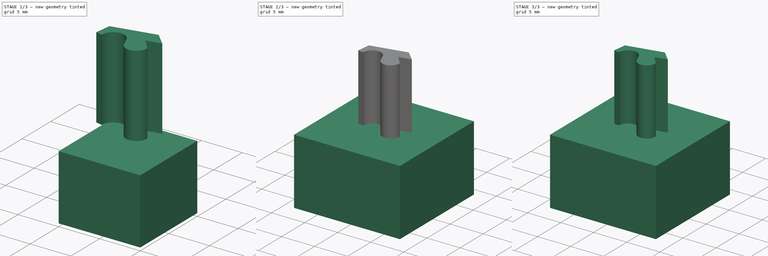
[diagram: build sequence overview — one tinted view per stage of 3, left to right]
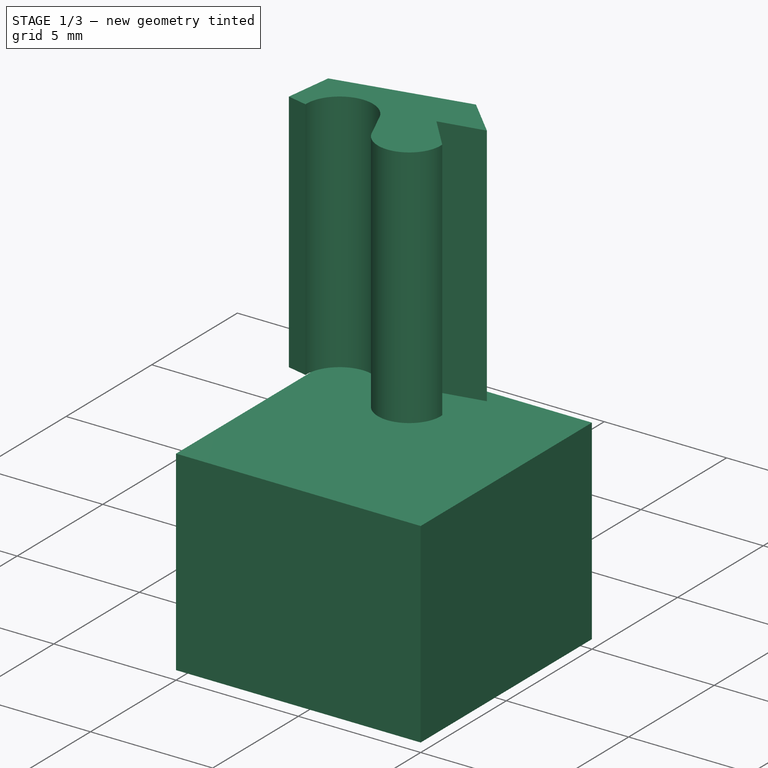
[diagram: stage 1 of 3 — iso view after this stage's code; geometry added in this stage tinted green]
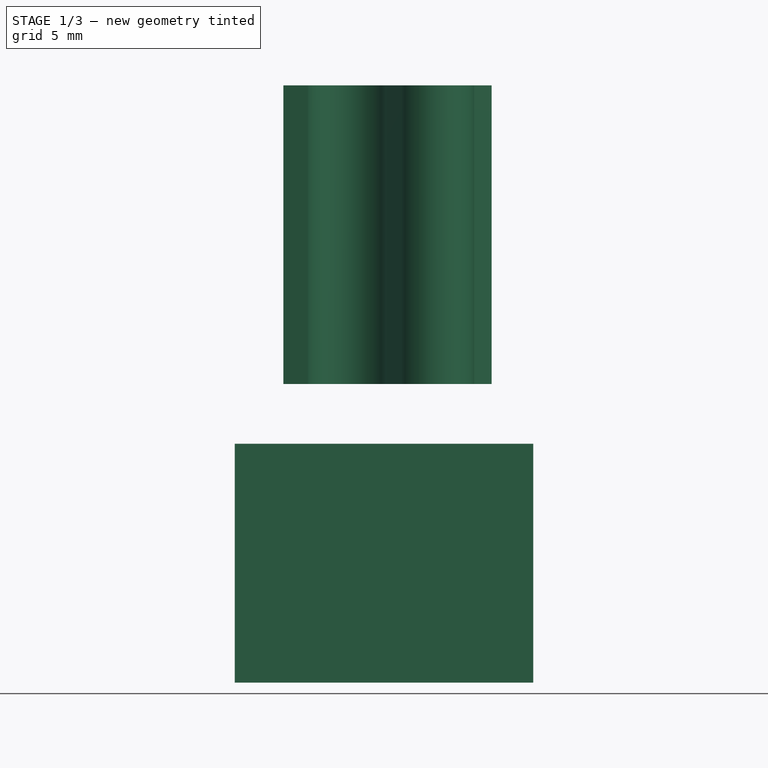
[diagram: stage 1 of 3 — front view after this stage's code; geometry added in this stage tinted green]
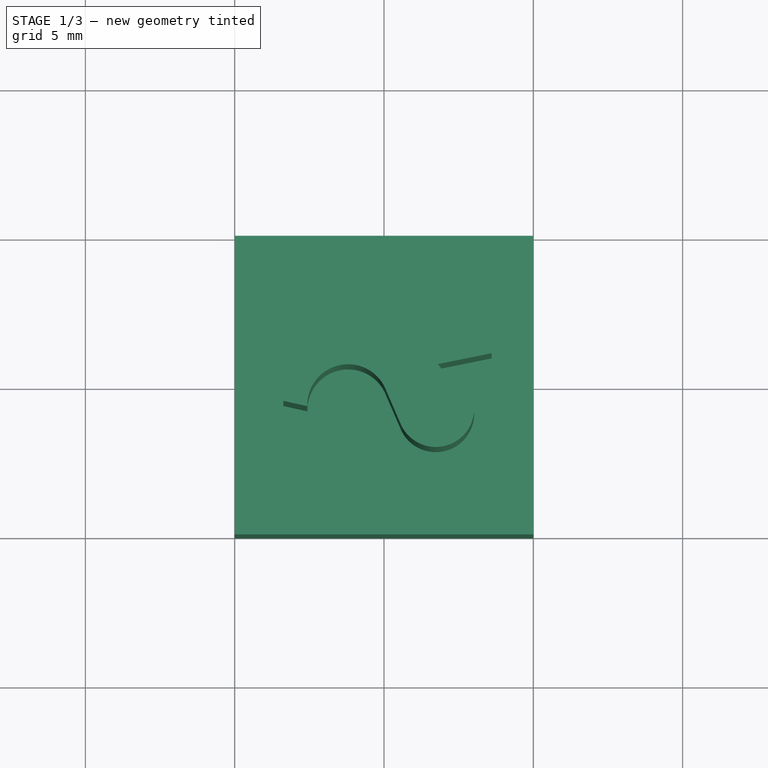
[diagram: stage 1 of 3 — top view after this stage's code; geometry added in this stage tinted green]
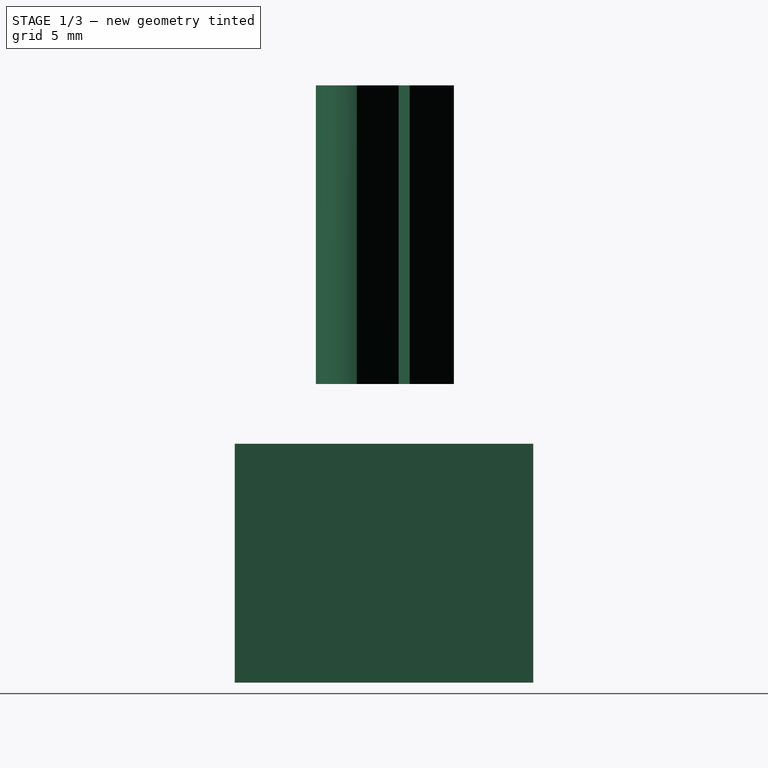
[diagram: stage 1 of 3 — right view after this stage's code; geometry added in this stage tinted green]
FCSTD DOCUMENT  (FreeCAD 0.18.3R)
Label: random1
License: All rights reserved
LicenseURL: http://en.wikipedia.org/wiki/All_rights_reserved
objects: Part::Box×2, Sketcher::SketchObject×1, Part::Extrusion×1, Part::MultiFuse×1, Part::Cut×1
note: 6 computed .brp shape members not serialized (recipe doc carries the construction recipe); baked Part::Feature solids carry a one-line shape summary decoded from their .brp

FEATURE [Sketcher::SketchObject] Sketch
  sketch-geometry (9):
    g0: LineSegment StartX=1.12075 StartY=2.83998 StartZ=0 EndX=-4.12075 EndY=1.69911 EndZ=0
    g1: LineSegment StartX=1.12075 StartY=2.83998 StartZ=0 EndX=2.6056 EndY=1.35826 EndZ=0
    g2: LineSegment StartX=2.6056 StartY=1.35826 StartZ=0 EndX=0.800522 EndY=0.990688 EndZ=0
    g3: LineSegment StartX=0.800522 StartY=0.990688 StartZ=0 EndX=2.01731 EndY=-0.409942 EndZ=0
    g4: ArcOfCircle CenterX=0.734843 CenterY=-0.497793 CenterZ=0 NormalX=0 NormalY=0 NormalZ=1 AngleXU=0 Radius=1.28547 StartAngle=3.61136 EndAngle=6.35158
    g5: ArcOfCircle CenterX=-2.20184 CenterY=-0.378457 CenterZ=0 NormalX=0 NormalY=0 NormalZ=1 AngleXU=0 Radius=1.3653 StartAngle=0.342087 EndAngle=3.1706
    g6: LineSegment StartX=-4.37156 StartY=-0.236927 StartZ=0 EndX=-4.12075 EndY=1.69911 EndZ=0
    g7: LineSegment StartX=-0.411383 StartY=-1.07969 StartZ=0 EndX=-0.915655 EndY=0.079537 EndZ=0
    g8: LineSegment StartX=-4.37156 StartY=-0.236927 StartZ=0 EndX=-3.56657 EndY=-0.41805 EndZ=0
  constraints (25):
    c: Coincident(g7,g5)
    c: Coincident(g0,g6)
    c: Coincident(g0,g1)
    c: Coincident(g1,g2)
    c: Coincident(g2,g3)
    c: Coincident(g4,g3)
    c: Coincident(g7,g4)
    c: Coincident(g8,g6)
    c: Coincident(g8,g5)
    c: DistanceX(g0) = 1.12075
    c: DistanceY(g0) = 2.83998
    c: DistanceX(g1) = 2.6056
    c: DistanceY(g1) = 1.35826
    c: DistanceX(g3) = 2.01731
    c: DistanceY(g3) = -0.409942
    c: DistanceX(g4) = -0.411383
    c: DistanceY(g4) = -1.07969
    c: DistanceX(g5) = -0.915655
    c: DistanceY(g5) = 0.079537
    c: DistanceX(g5) = -3.56657
    c: DistanceY(g5) = -0.41805
    c: DistanceX(g6) = -4.37156
    c: DistanceY(g6) = -0.236927
    c: DistanceX(g0) = -4.12075
    c: DistanceY(g0) = 1.69911
FEATURE [Part::Extrusion] Extrude
  Base = -> Sketch
  Dir = (0,0,1)
  DirMode = 2
  FaceMakerClass = Part::FaceMakerBullseye
  LengthFwd = 10
  LengthRev = 0
  Placement = pos=(1,-0.5,10) rot=(0,0,1;0rad)
  Solid = true
  Symmetric = false
FEATURE [Part::Box] Box001  label="Cube001"
  AttacherType = Attacher::AttachEngine3D
  Height = 8
  Length = 10
  Placement = pos=(-5,-5,0) rot=(0,0,1;0rad)
  Width = 10
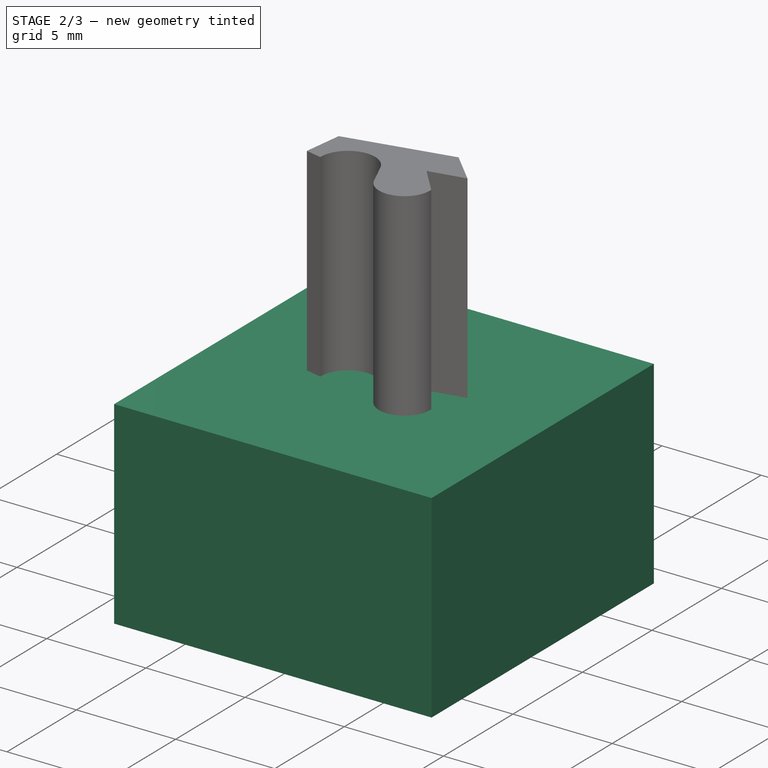
[diagram: stage 2 of 3 — iso view after this stage's code; geometry added in this stage tinted green]
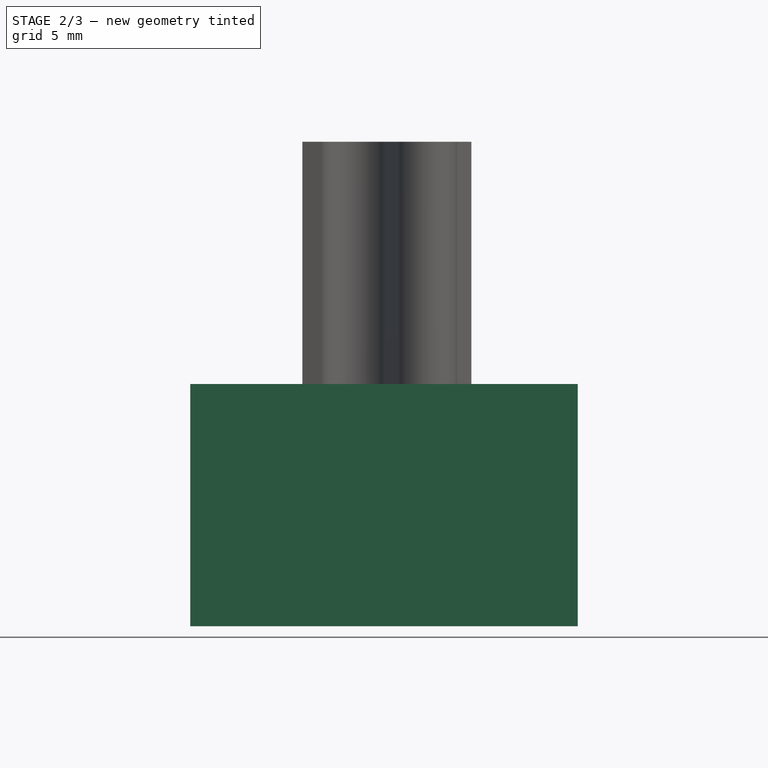
[diagram: stage 2 of 3 — front view after this stage's code; geometry added in this stage tinted green]
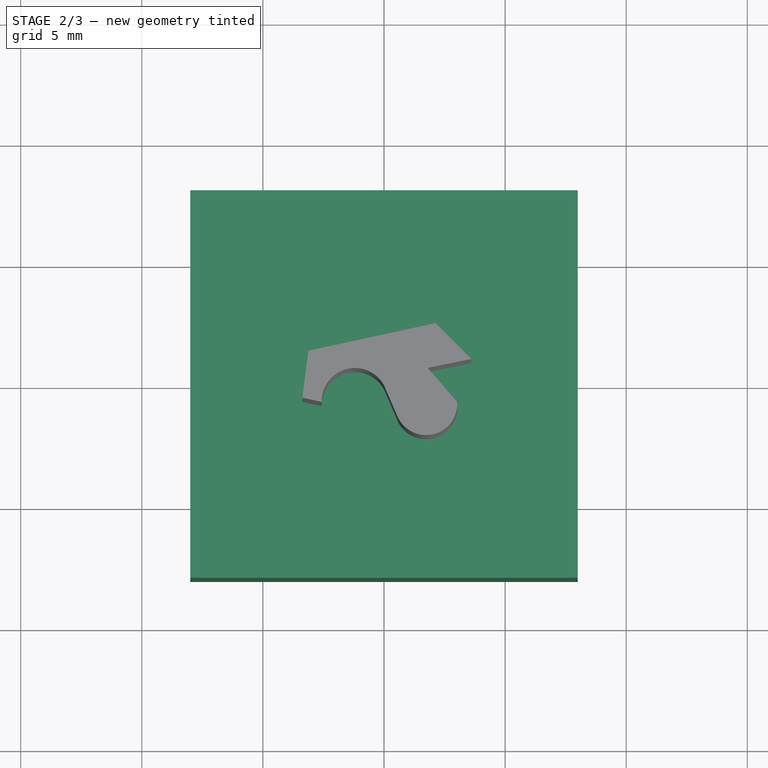
[diagram: stage 2 of 3 — top view after this stage's code; geometry added in this stage tinted green]
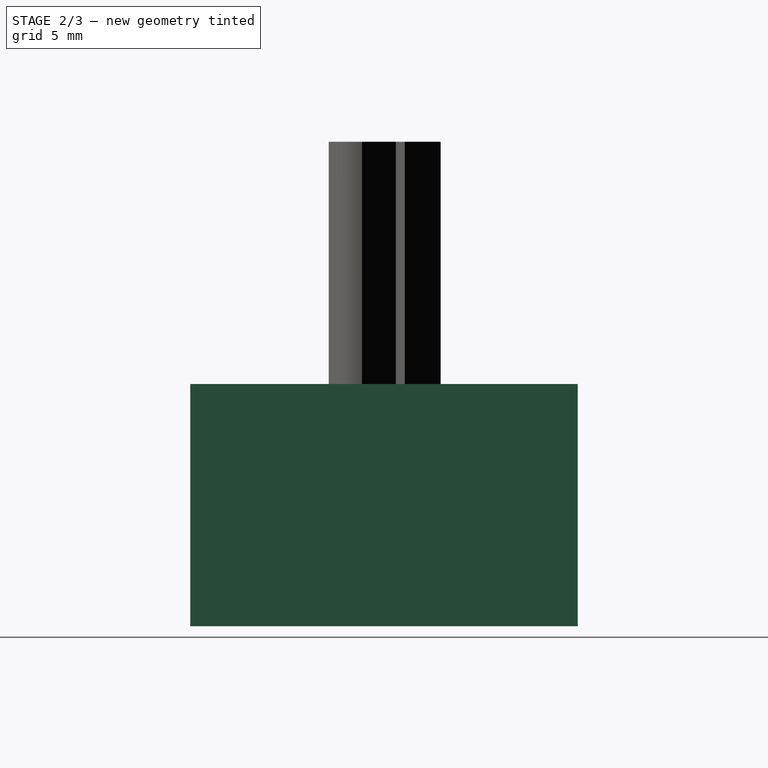
[diagram: stage 2 of 3 — right view after this stage's code; geometry added in this stage tinted green]
FEATURE [Part::Box] Box  label="Cube"
  AttacherType = Attacher::AttachEngine3D
  Height = 10
  Length = 16
  Placement = pos=(-8,-8,0) rot=(0,0,1;0rad)
  Width = 16
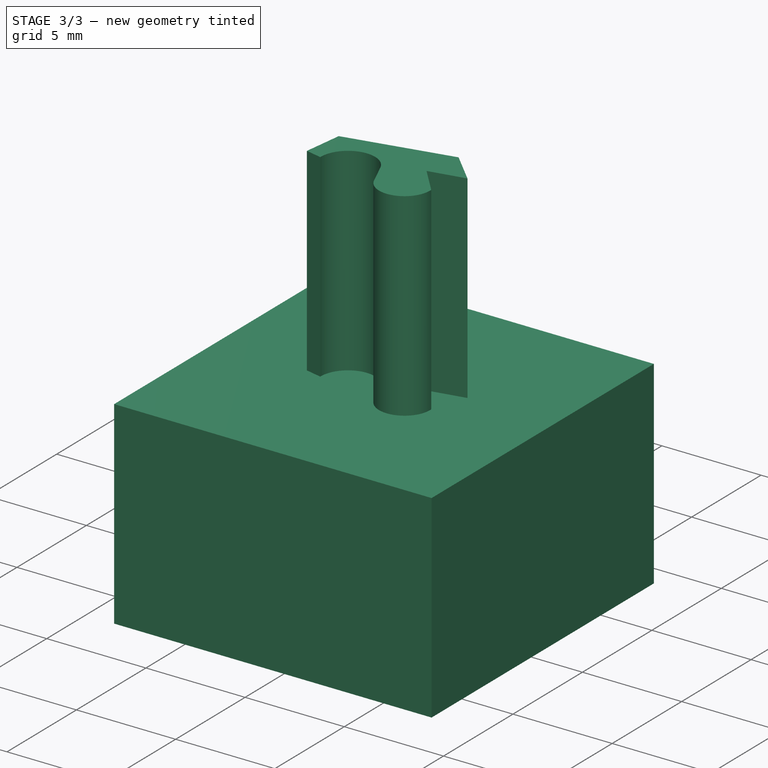
[diagram: stage 3 of 3 — iso view after this stage's code; geometry added in this stage tinted green]
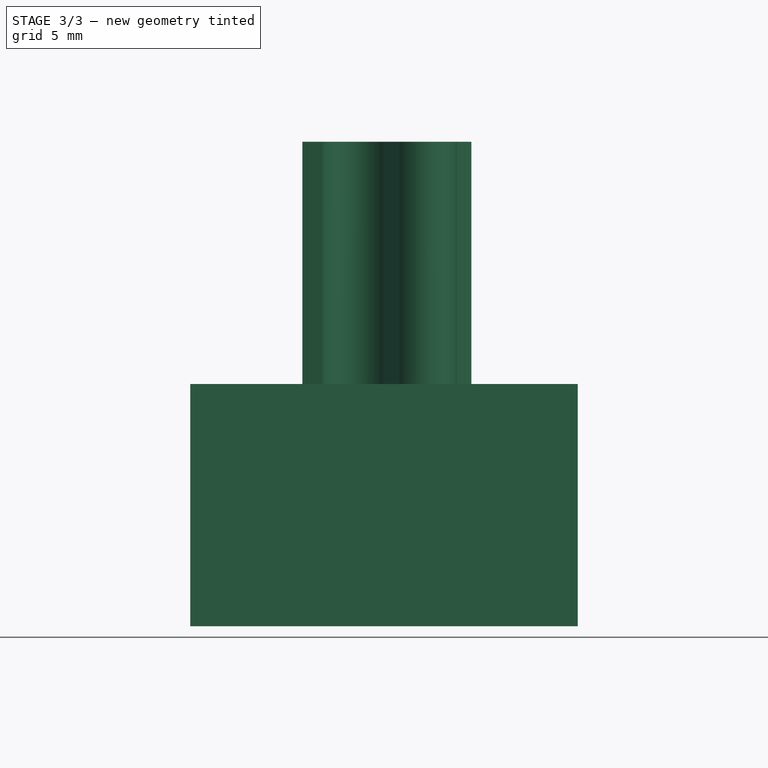
[diagram: stage 3 of 3 — front view after this stage's code; geometry added in this stage tinted green]
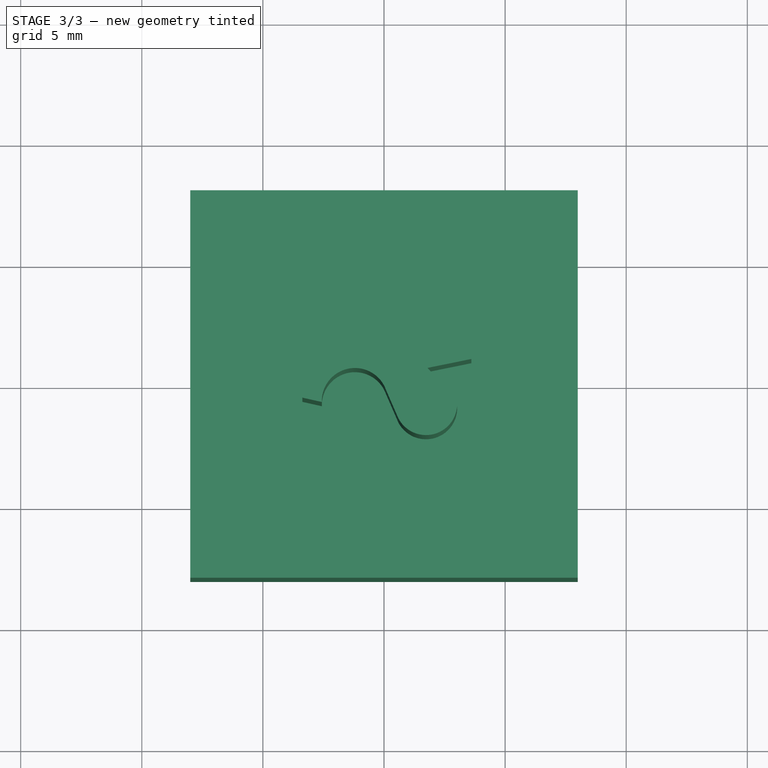
[diagram: stage 3 of 3 — top view after this stage's code; geometry added in this stage tinted green]
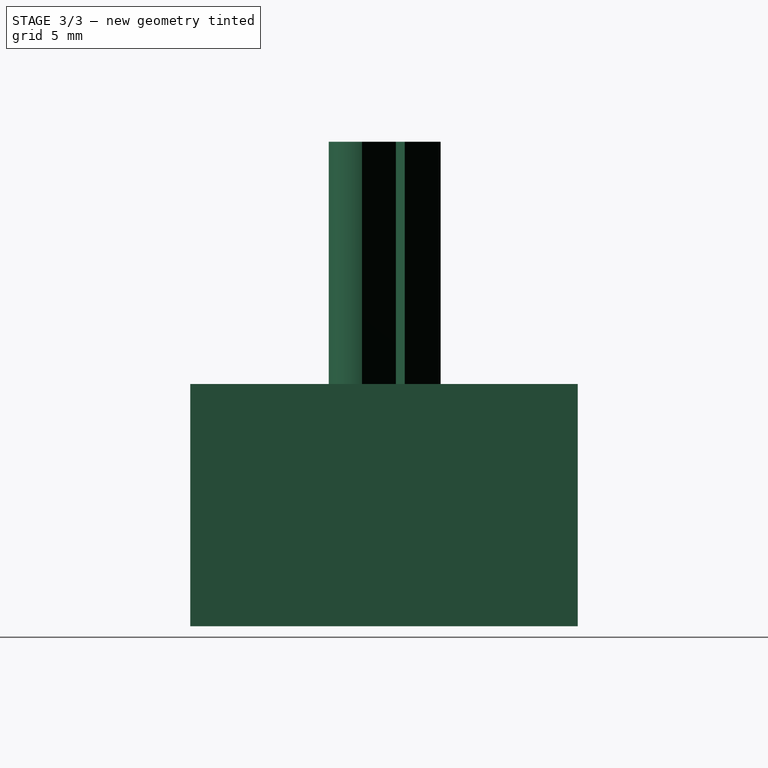
[diagram: stage 3 of 3 — right view after this stage's code; geometry added in this stage tinted green]
FEATURE [Part::MultiFuse] Fusion
  Shapes = -> [Box,Extrude]
FEATURE [Part::Cut] Cut
  Base = -> Fusion
  Tool = -> Box001
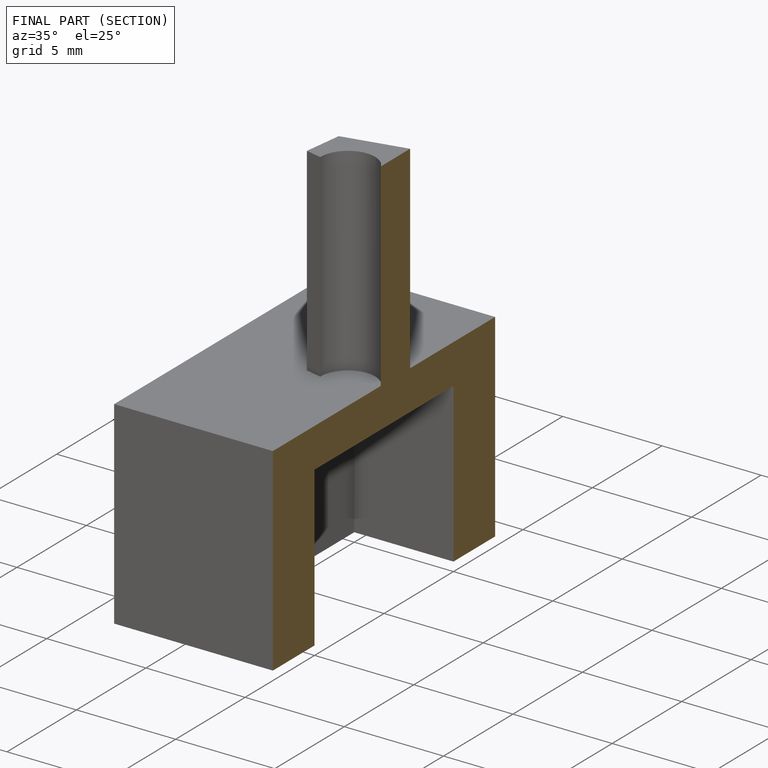
[diagram: finished part — half-section view (interior)]
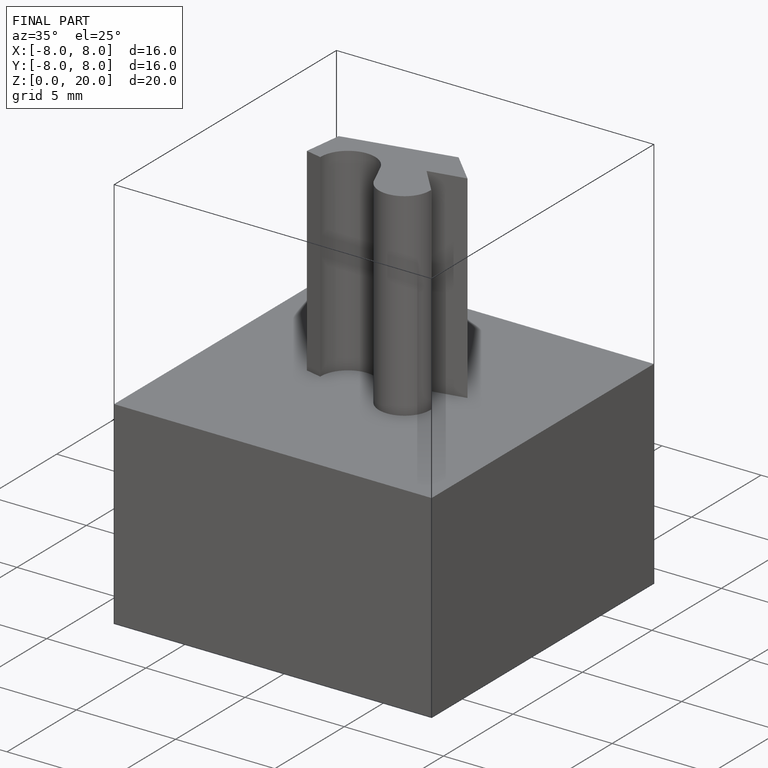
[diagram: finished part — iso view with bounding-box wireframe]
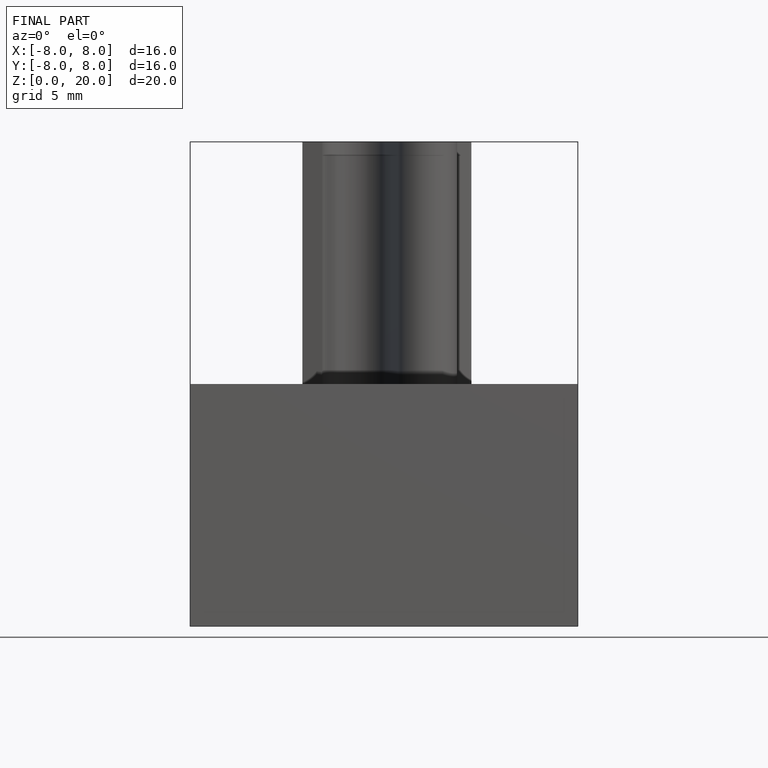
[diagram: finished part — front view with bounding-box wireframe]
